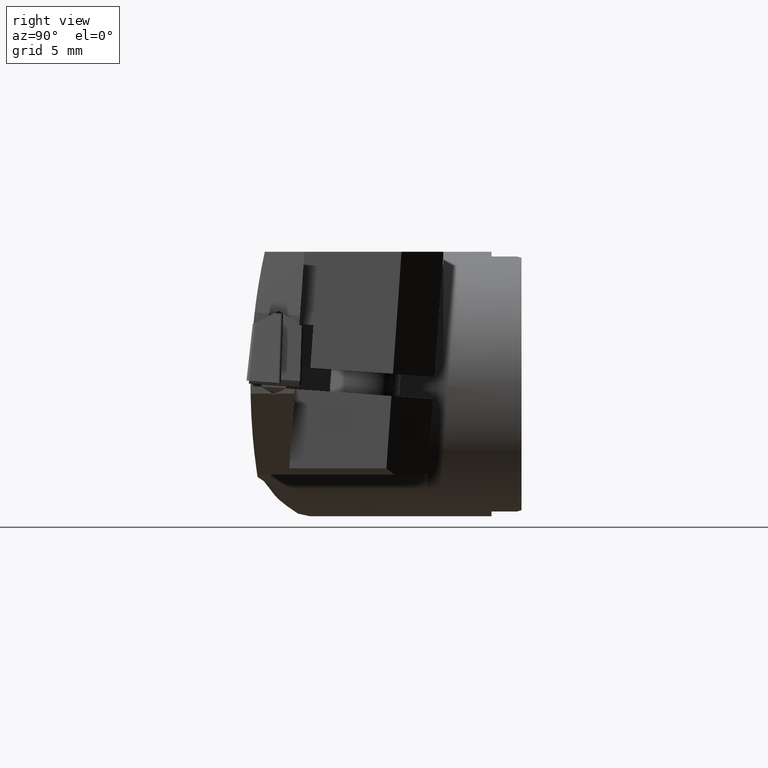
[diagram: clean part render]
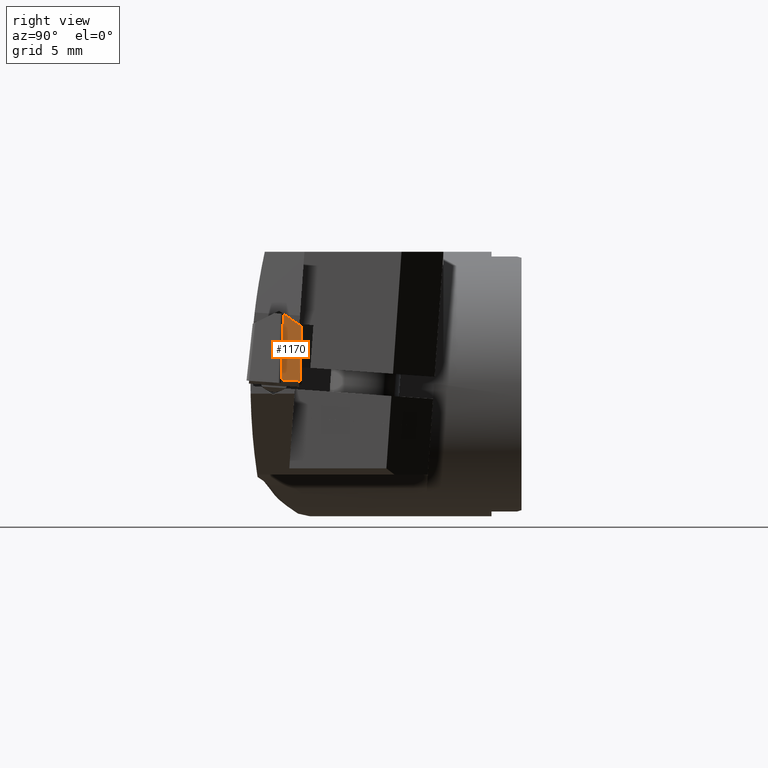
[diagram: same view with one face highlighted and labeled with its STEP entity id]
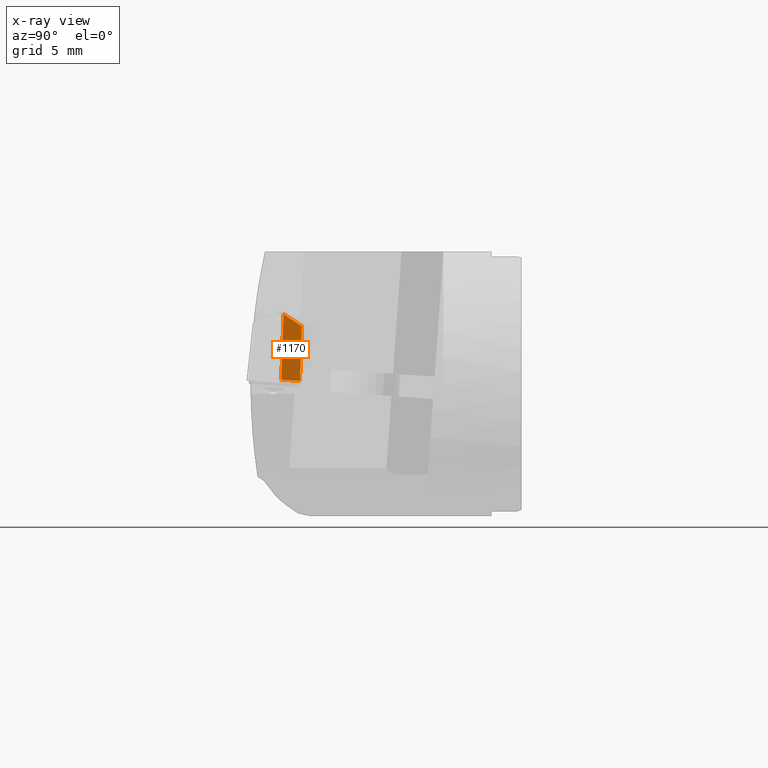
[diagram: x-ray of the same camera — body ghosted, the highlighted face saturated]
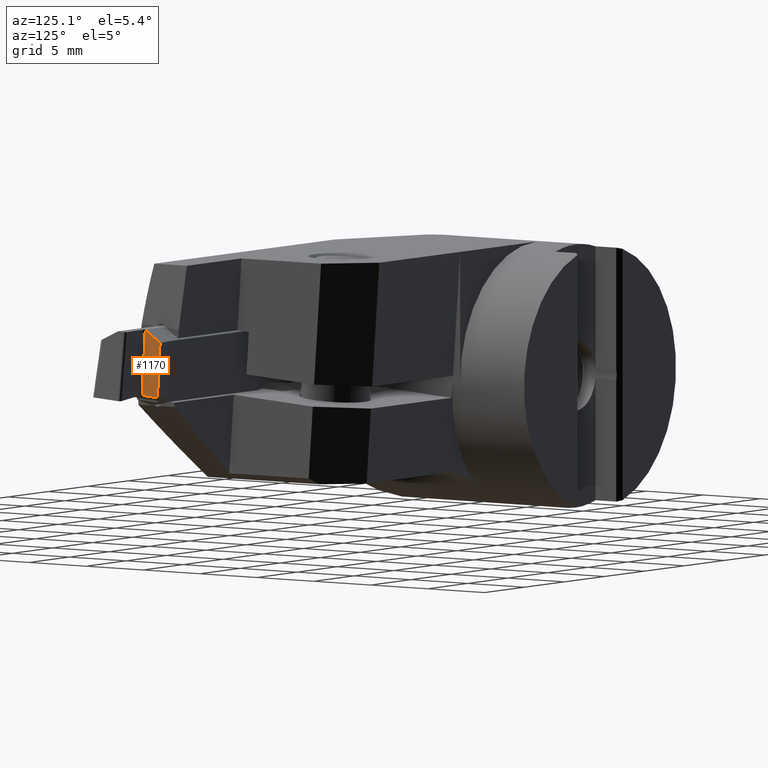
[diagram: same view with one face highlighted and labeled with its STEP entity id]
A machine part, right view. The second image highlights one B-rep face of the part: STEP entity #1170.
The next image is the same camera in x-ray: the body ghosted, the highlighted face saturated — about 0% of this face is hidden behind the body in this view.
A second angle (auxiliary view) of the same face is appended — the face is thin or edge-on in the first view.
In plain terms, the highlighted planar face has unit normal (-0.9994, -0.0024, -0.0348).
Its self-contained STEP definition (entity closure, byte-faithful):
#1026=VERTEX_POINT('NONE',#2525);
#1062=VERTEX_POINT('NONE',#2566);
#1170=ADVANCED_FACE('NONE',(#2683),#2684,.F.);
#1248=EDGE_CURVE('NONE',#1732,#1062,#2769,.T.);
#1272=EDGE_CURVE('NONE',#1552,#1026,#2795,.T.);
#1514=EDGE_CURVE('NONE',#1026,#1732,#3063,.T.);
#1552=VERTEX_POINT('NONE',#3102);
#1732=VERTEX_POINT('NONE',#3294);
#2062=EDGE_CURVE('NONE',#1062,#1552,#3658,.T.);
#2525=CARTESIAN_POINT('',(32.6582543431906,-17.2624232881084,0.305652757071414));
#2566=CARTESIAN_POINT('',(32.5208381659342,-15.7896046867086,4.14735677997159));
#2683=FACE_OUTER_BOUND('',#4620,.T.);
#2684=PLANE('',#4621);
#2769=LINE('',#4757,#4758);
#2795=LINE('',#4829,#4830);
#3063=LINE('',#5346,#5347);
#3102=CARTESIAN_POINT('',(32.4931726498393,-17.1031927112928,5.03338309017581));
#3294=CARTESIAN_POINT('',(32.6582543431906,-15.9199955472104,0.211781064885909));
#3658=LINE('',#6757,#6758);
#4620=EDGE_LOOP('',(#7542,#7543,#7544,#7545));
#4621=AXIS2_PLACEMENT_3D('',#7546,#7547,#7548);
#4757=CARTESIAN_POINT('',(32.6718567793721,-15.9329025672865,-0.177790371103847));
#4758=VECTOR('',#7639,1000.0);
#4829=CARTESIAN_POINT('',(32.6581239867556,-17.2622975519961,0.309386000044416));
#4830=VECTOR('',#7666,1000.0);
#5346=CARTESIAN_POINT('',(32.6582543431906,-22.7524079843879,0.689549884500817));
#5347=VECTOR('',#7995,1000.0);
#6757=CARTESIAN_POINT('',(32.4949580856491,-17.0184183268063,4.97620204582954));
#6758=VECTOR('',#8545,1000.0);
#7542=ORIENTED_EDGE('',*,*,#2062,.T.);
#7543=ORIENTED_EDGE('',*,*,#1272,.T.);
#7544=ORIENTED_EDGE('',*,*,#1514,.T.);
#7545=ORIENTED_EDGE('',*,*,#1248,.T.);
#7546=CARTESIAN_POINT('',(32.6735249658435,-17.3803905157742,-0.124459414820329));
#7547=DIRECTION('',(-0.999390827019096,-0.00243446582541078,-0.0348144832825763));
#7548=DIRECTION('',(-0.034899496702501,0.0697139799850627,0.996956361193686));
#7639=DIRECTION('',(-0.0348760327746689,0.0330930172500358,0.998843588629966));
#7666=DIRECTION('',(0.0348767285405295,-0.0336405660143822,-0.998825273070592));
#7995=DIRECTION('',(-9.26480646296796E-017,0.997564050259825,-0.0697564737441107));
#8545=DIRECTION('',(-0.0174577238238672,-0.8289112291581,0.559107683773437));